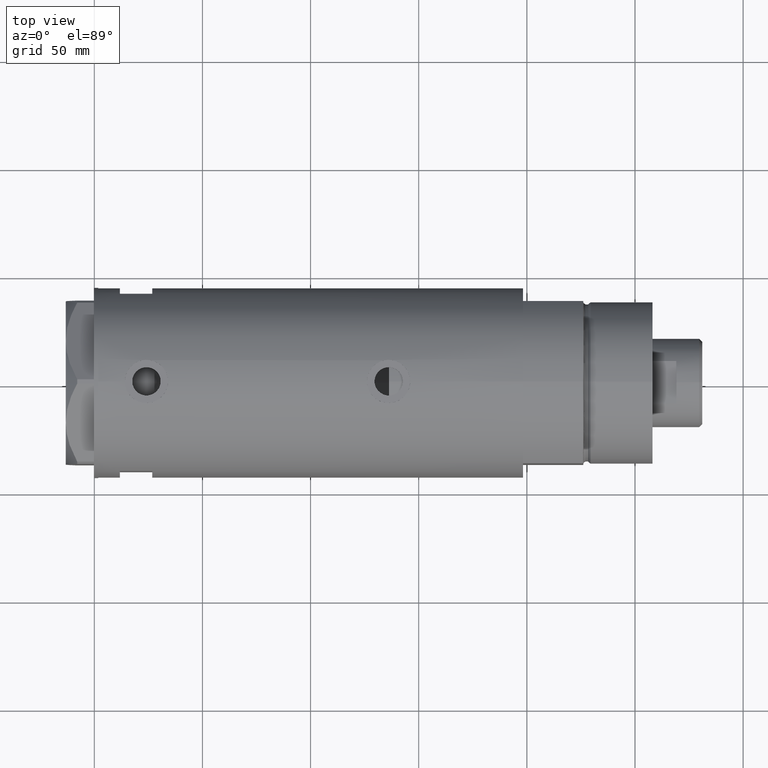
[diagram: clean part render]
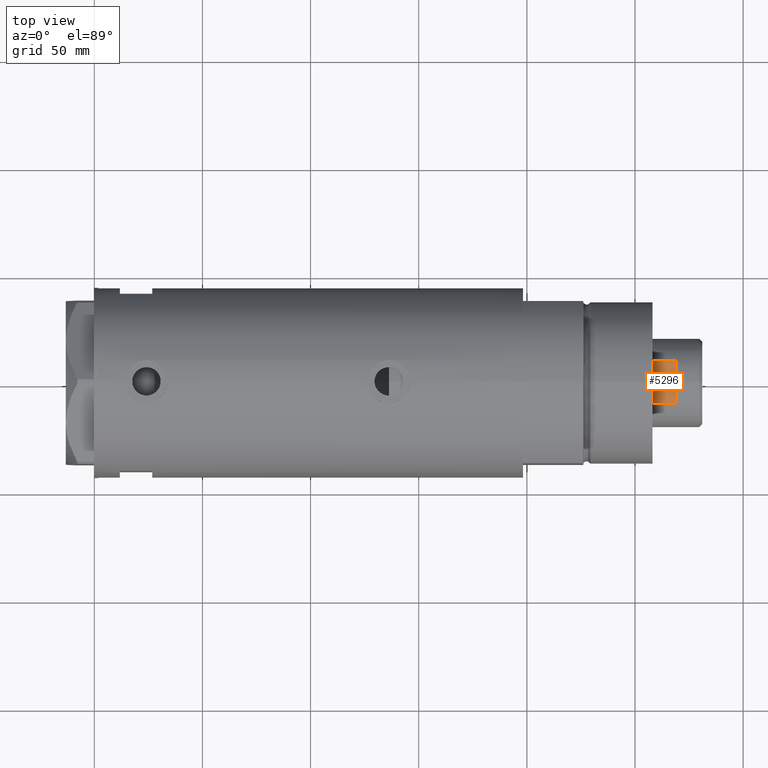
[diagram: same view with one face highlighted and labeled with its STEP entity id]
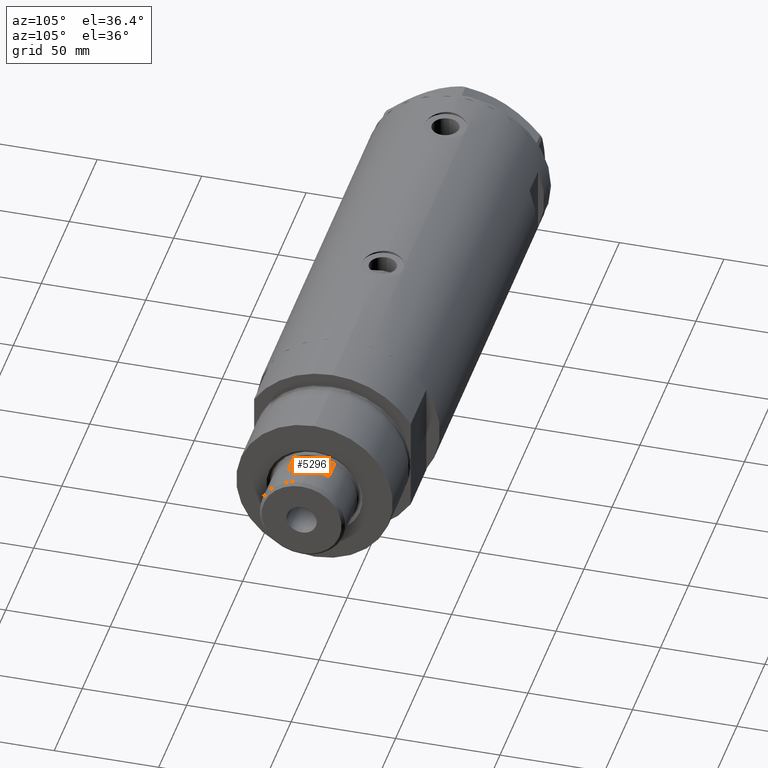
[diagram: same view with one face highlighted and labeled with its STEP entity id]
A machine part, top view. The second image highlights one B-rep face of the part: STEP entity #5296.
A second angle (auxiliary view) of the same face is appended — the face is thin or edge-on in the first view.
In plain terms, the highlighted planar face has unit normal (-0, -0, -1).
Its self-contained STEP definition (entity closure, byte-faithful):
#312 = PLANE ( 'NONE',  #3317 ) ;
#609 = VERTEX_POINT ( 'NONE', #1342 ) ;
#960 = DIRECTION ( 'NONE',  ( 1.000000000000000000, 1.761140584748027671E-16, -0.000000000000000000 ) ) ;
#968 = VERTEX_POINT ( 'NONE', #3490 ) ;
#1038 = VECTOR ( 'NONE', #4298, 1000.000000000000000 ) ;
#1060 = EDGE_CURVE ( 'NONE', #1784, #609, #2144, .T. ) ;
#1072 = ORIENTED_EDGE ( 'NONE', *, *, #1060, .F. ) ;
#1342 = CARTESIAN_POINT ( 'NONE',  ( -17.97852886083842705, -9.849999999999972999, 230.3000000000000114 ) ) ;
#1585 = EDGE_CURVE ( 'NONE', #4674, #609, #2449, .T. ) ;
#1684 = FACE_OUTER_BOUND ( 'NONE', #3540, .T. ) ;
#1784 = VERTEX_POINT ( 'NONE', #5998 ) ;
#1971 = ORIENTED_EDGE ( 'NONE', *, *, #4937, .F. ) ;
#2144 = LINE ( 'NONE', #3262, #2987 ) ;
#2155 = LINE ( 'NONE', #4018, #5795 ) ;
#2349 = ORIENTED_EDGE ( 'NONE', *, *, #1585, .T. ) ;
#2449 = LINE ( 'NONE', #4831, #1038 ) ;
#2709 = VECTOR ( 'NONE', #3464, 1000.000000000000000 ) ;
#2739 = EDGE_CURVE ( 'NONE', #968, #4674, #2155, .T. ) ;
#2827 = DIRECTION ( 'NONE',  ( -1.761140584748027671E-16, 1.000000000000000000, 0.000000000000000000 ) ) ;
#2959 = LINE ( 'NONE', #3926, #2709 ) ;
#2987 = VECTOR ( 'NONE', #4398, 1000.000000000000000 ) ;
#3262 = CARTESIAN_POINT ( 'NONE',  ( -17.97852886083842350, -9.850000000000001421, 241.3000000000000114 ) ) ;
#3309 = ORIENTED_EDGE ( 'NONE', *, *, #2739, .T. ) ;
#3317 = AXIS2_PLACEMENT_3D ( 'NONE', #4914, #960, #2827 ) ;
#3464 = DIRECTION ( 'NONE',  ( 1.761140584748027671E-16, -1.000000000000000000, -0.000000000000000000 ) ) ;
#3490 = CARTESIAN_POINT ( 'NONE',  ( -17.97852886083842705, 9.849999999999997868, 241.3000000000000114 ) ) ;
#3540 = EDGE_LOOP ( 'NONE', ( #2349, #1072, #1971, #3309 ) ) ;
#3926 = CARTESIAN_POINT ( 'NONE',  ( -17.97852886083842350, -9.850000000000001421, 241.3000000000000114 ) ) ;
#4018 = CARTESIAN_POINT ( 'NONE',  ( -17.97852886083842705, 9.849999999999997868, 241.3000000000000114 ) ) ;
#4059 = CARTESIAN_POINT ( 'NONE',  ( -17.97852886083842705, 9.849999999999965894, 230.3000000000000114 ) ) ;
#4298 = DIRECTION ( 'NONE',  ( 1.761140584748027671E-16, -1.000000000000000000, -0.000000000000000000 ) ) ;
#4398 = DIRECTION ( 'NONE',  ( -0.000000000000000000, -0.000000000000000000, -1.000000000000000000 ) ) ;
#4472 = DIRECTION ( 'NONE',  ( -0.000000000000000000, -0.000000000000000000, -1.000000000000000000 ) ) ;
#4674 = VERTEX_POINT ( 'NONE', #4059 ) ;
#4831 = CARTESIAN_POINT ( 'NONE',  ( -17.97852886083842350, -9.850000000000001421, 230.3000000000000114 ) ) ;
#4914 = CARTESIAN_POINT ( 'NONE',  ( -17.97852886083842350, -9.850000000000001421, 241.3000000000000114 ) ) ;
#4937 = EDGE_CURVE ( 'NONE', #968, #1784, #2959, .T. ) ;
#5296 = ADVANCED_FACE ( 'NONE', ( #1684 ), #312, .F. ) ;
#5795 = VECTOR ( 'NONE', #4472, 1000.000000000000000 ) ;
#5998 = CARTESIAN_POINT ( 'NONE',  ( -17.97852886083842705, -9.849999999999996092, 241.3000000000000114 ) ) ;